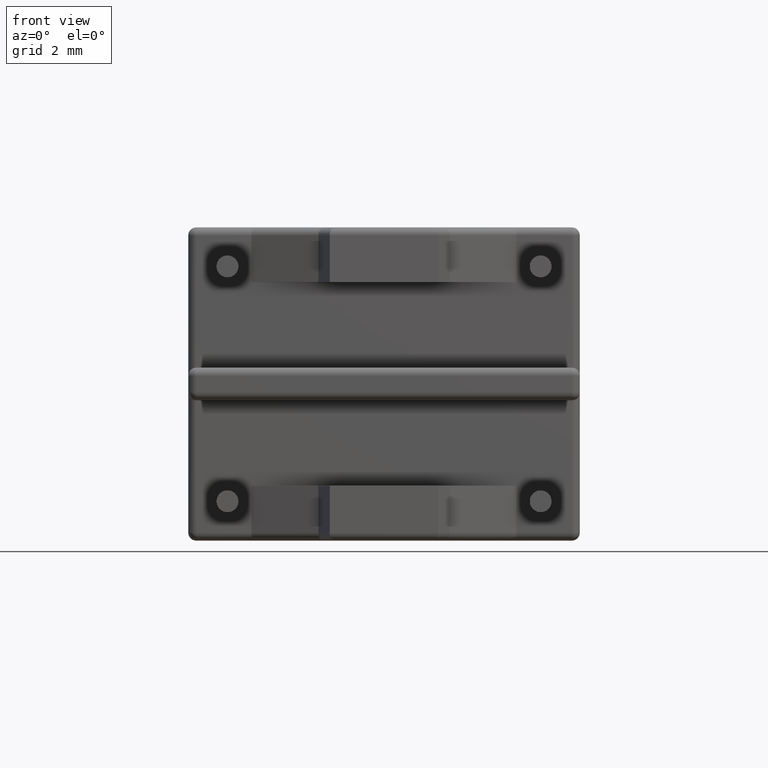
[diagram: clean part render]
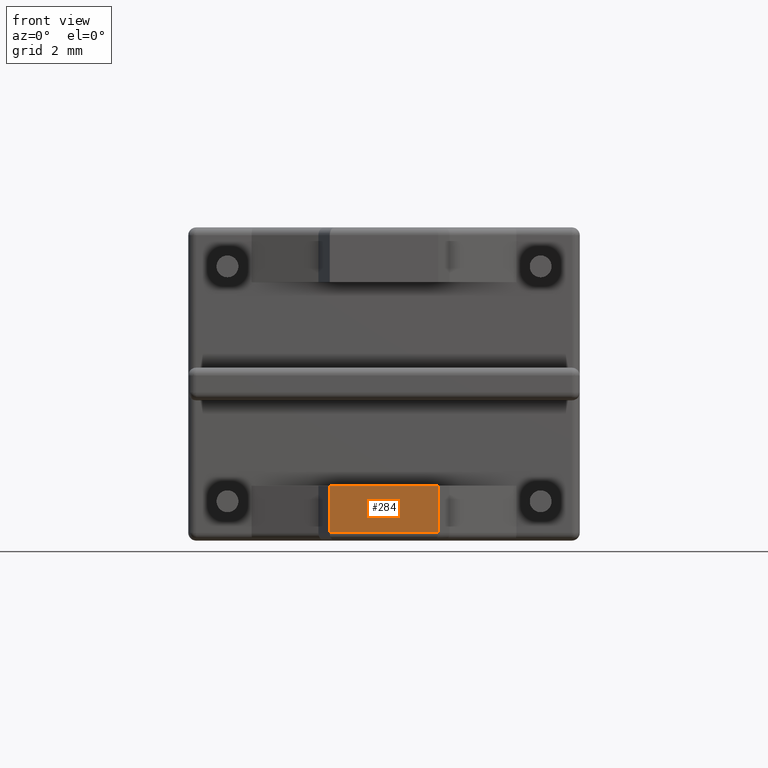
[diagram: same view with one face highlighted and labeled with its STEP entity id]
A machine part, front view. The second image highlights one B-rep face of the part: STEP entity #284.
In plain terms, the highlighted planar face has unit normal (-0, -1, 0).
Its self-contained STEP definition (entity closure, byte-faithful):
#206 = CARTESIAN_POINT ( 'NONE',  ( 7.983015520393248500, -1.500000000000000000, -8.250000000000000000 ) ) ;
#284 = ADVANCED_FACE ( 'NONE', ( #8082 ), #4832, .T. ) ;
#446 = ORIENTED_EDGE ( 'NONE', *, *, #4096, .T. ) ;
#490 = CARTESIAN_POINT ( 'NONE',  ( 4.516984479606751500, -1.499999999999993100, -9.750000000000000000 ) ) ;
#509 = LINE ( 'NONE', #6682, #5679 ) ;
#927 = DIRECTION ( 'NONE',  ( 0.0000000000000000000, 0.0000000000000000000, -1.000000000000000000 ) ) ;
#989 = VECTOR ( 'NONE', #1264, 1000.000000000000000 ) ;
#1264 = DIRECTION ( 'NONE',  ( 0.0000000000000000000, 0.0000000000000000000, -1.000000000000000000 ) ) ;
#1653 = VERTEX_POINT ( 'NONE', #490 ) ;
#2155 = VERTEX_POINT ( 'NONE', #5020 ) ;
#2852 = DIRECTION ( 'NONE',  ( -2.001971079385568300E-015, -1.000000000000000000, 0.0000000000000000000 ) ) ;
#2961 = VERTEX_POINT ( 'NONE', #5503 ) ;
#3012 = EDGE_CURVE ( 'NONE', #7679, #1653, #5464, .T. ) ;
#3077 = AXIS2_PLACEMENT_3D ( 'NONE', #206, #2852, #4811 ) ;
#3911 = EDGE_LOOP ( 'NONE', ( #4213, #446, #4392, #7093 ) ) ;
#4096 = EDGE_CURVE ( 'NONE', #1653, #2961, #7562, .T. ) ;
#4213 = ORIENTED_EDGE ( 'NONE', *, *, #3012, .T. ) ;
#4330 = LINE ( 'NONE', #4513, #989 ) ;
#4392 = ORIENTED_EDGE ( 'NONE', *, *, #4426, .F. ) ;
#4426 = EDGE_CURVE ( 'NONE', #2155, #2961, #4330, .T. ) ;
#4513 = CARTESIAN_POINT ( 'NONE',  ( 7.983015520393248500, -1.500000000000000000, -8.250000000000000000 ) ) ;
#4808 = DIRECTION ( 'NONE',  ( -1.000000000000000000, 2.001971079385568300E-015, 0.0000000000000000000 ) ) ;
#4811 = DIRECTION ( 'NONE',  ( 1.000000000000000000, -2.001971079385568300E-015, 0.0000000000000000000 ) ) ;
#4832 = PLANE ( 'NONE',  #3077 ) ;
#5020 = CARTESIAN_POINT ( 'NONE',  ( 7.983015520393248500, -1.500000000000000000, -8.250000000000000000 ) ) ;
#5369 = VECTOR ( 'NONE', #6193, 1000.000000000000000 ) ;
#5464 = LINE ( 'NONE', #7285, #7068 ) ;
#5489 = CARTESIAN_POINT ( 'NONE',  ( 4.516984479606751500, -1.499999999999993100, -8.250000000000000000 ) ) ;
#5503 = CARTESIAN_POINT ( 'NONE',  ( 7.983015520393248500, -1.500000000000000000, -9.750000000000000000 ) ) ;
#5679 = VECTOR ( 'NONE', #4808, 1000.000000000000000 ) ;
#5944 = EDGE_CURVE ( 'NONE', #2155, #7679, #509, .T. ) ;
#6193 = DIRECTION ( 'NONE',  ( 1.000000000000000000, -2.001971079385568300E-015, -0.0000000000000000000 ) ) ;
#6682 = CARTESIAN_POINT ( 'NONE',  ( 7.983015520393248500, -1.500000000000000000, -8.250000000000000000 ) ) ;
#6874 = CARTESIAN_POINT ( 'NONE',  ( 7.983015520393248500, -1.500000000000000000, -9.750000000000000000 ) ) ;
#7068 = VECTOR ( 'NONE', #927, 1000.000000000000000 ) ;
#7093 = ORIENTED_EDGE ( 'NONE', *, *, #5944, .T. ) ;
#7285 = CARTESIAN_POINT ( 'NONE',  ( 4.516984479606751500, -1.499999999999993100, -8.250000000000000000 ) ) ;
#7562 = LINE ( 'NONE', #6874, #5369 ) ;
#7679 = VERTEX_POINT ( 'NONE', #5489 ) ;
#8082 = FACE_OUTER_BOUND ( 'NONE', #3911, .T. ) ;